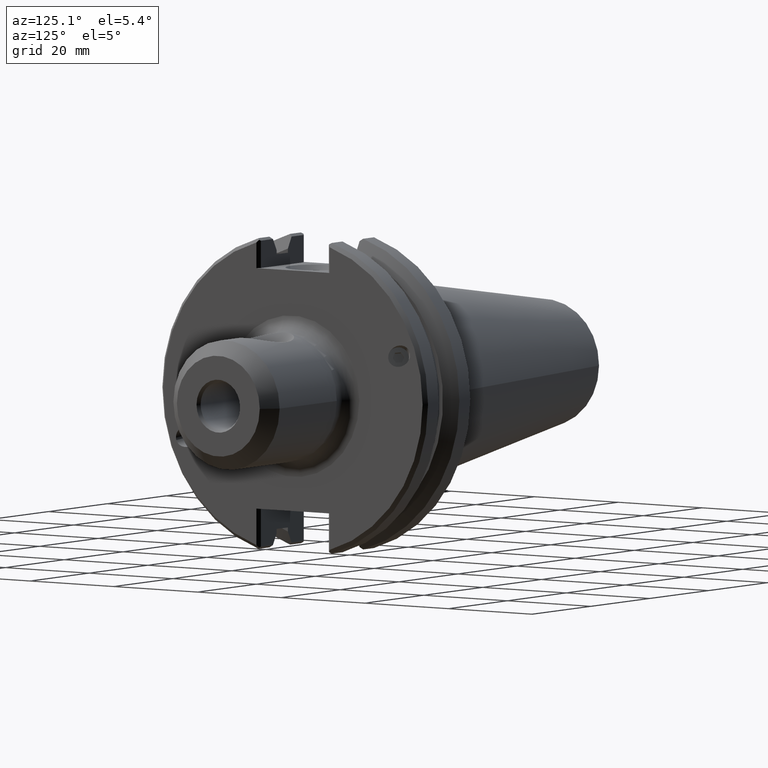
[diagram: clean part render]
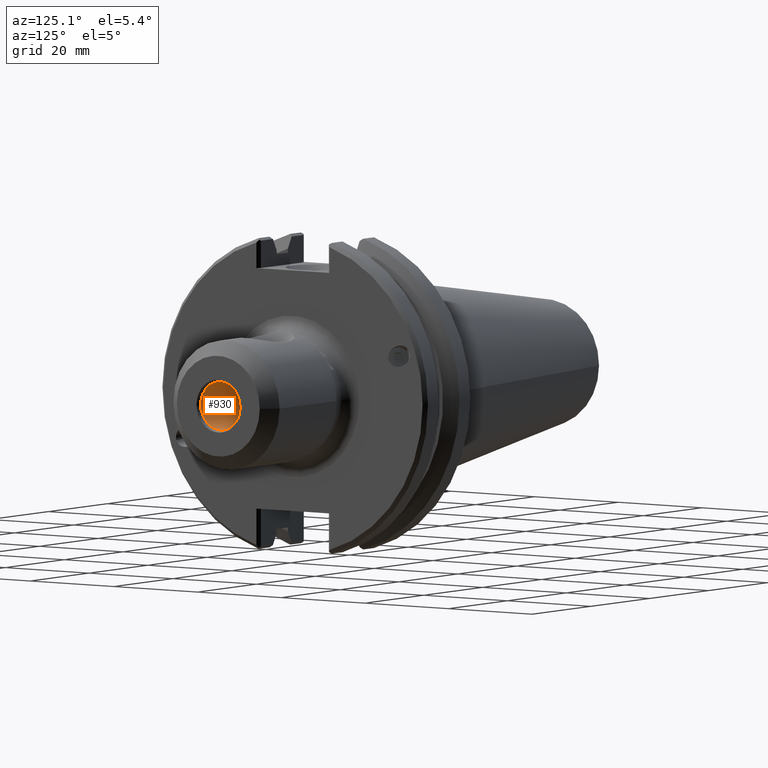
[diagram: same view with one face highlighted and labeled with its STEP entity id]
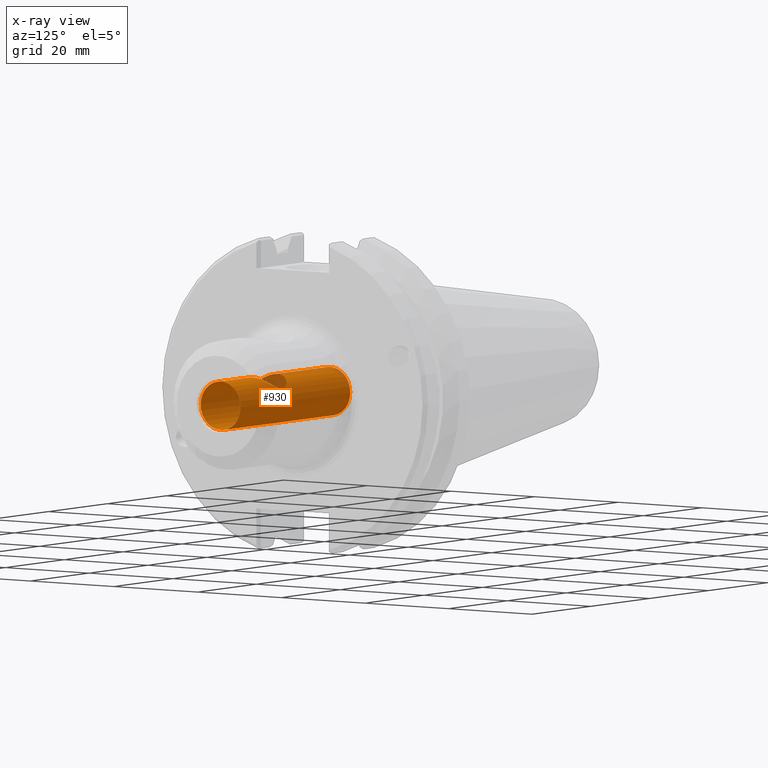
[diagram: x-ray of the same camera — body ghosted, the highlighted face saturated]
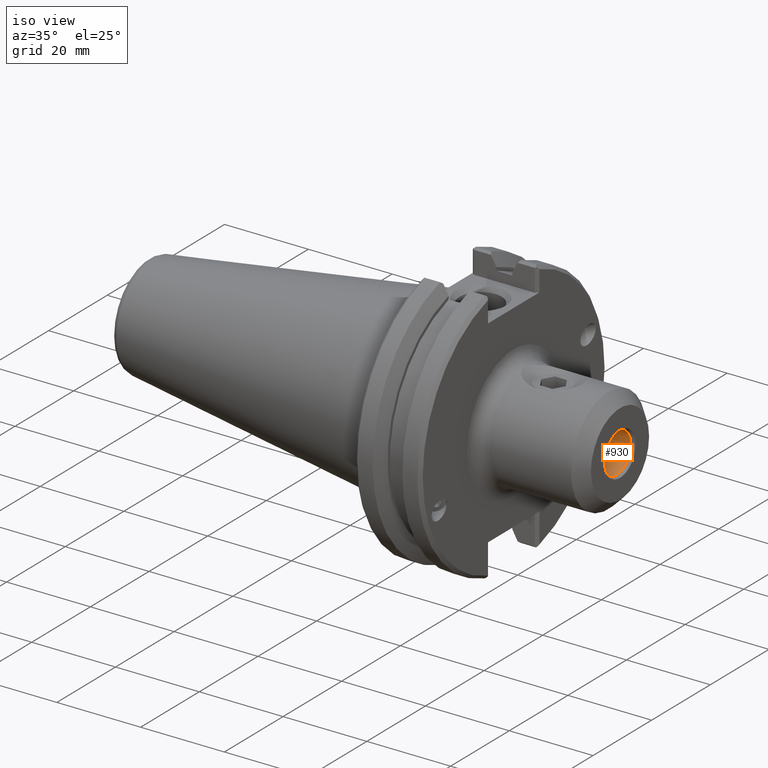
[diagram: same view with one face highlighted and labeled with its STEP entity id]
A machine part, auxiliary view. The second image highlights one B-rep face of the part: STEP entity #930.
The next image is the same camera in x-ray: the body ghosted, the highlighted face saturated — about 10% of this face is hidden behind the body in this view.
A second angle (iso view) of the same face is appended — the face is thin or edge-on in the first view.
In plain terms, the highlighted cylindrical surface (bore or boss wall) has radius 4.7625 mm, axis along (-1, 0, 0).
Its self-contained STEP definition (entity closure, byte-faithful):
#805=CARTESIAN_POINT('',(0.250005407046094,-0.1875,2.296213E-017));
#806=VERTEX_POINT('',#805);
#807=CARTESIAN_POINT('',(0.250005407046094,0.0,0.0));
#808=DIRECTION('',(-1.0,0.0,0.0));
#809=DIRECTION('',(0.0,1.0,0.0));
#810=AXIS2_PLACEMENT_3D('',#807,#808,#809);
#811=CIRCLE('',#810,0.1875);
#812=EDGE_CURVE('',#806,#806,#811,.T.);
#855=CARTESIAN_POINT('',(1.125,0.165,0.089057565652784));
#856=VERTEX_POINT('',#855);
#857=CARTESIAN_POINT('',(1.125,0.165,0.089057565652784));
#858=CARTESIAN_POINT('',(1.113208558924972,0.165,0.089057565652784));
#859=CARTESIAN_POINT('',(1.101971438075803,0.163754337616257,0.091435186365011));
#860=CARTESIAN_POINT('',(1.080455598613608,0.159253239120615,0.099067058688884));
#861=CARTESIAN_POINT('',(1.070165139173018,0.155988204003046,0.104282492298249));
#862=CARTESIAN_POINT('',(1.040671703163097,0.143424260442212,0.121611454867639));
#863=CARTESIAN_POINT('',(1.022864086922746,0.131209324714307,0.135222777750143));
#864=CARTESIAN_POINT('',(0.994665769949138,0.103011007740698,0.157637403092304));
#865=CARTESIAN_POINT('',(0.982078611153051,0.085333720666721,0.168340277174033));
#866=CARTESIAN_POINT('',(0.964720987524216,0.044933376628558,0.183306539052514));
#867=CARTESIAN_POINT('',(0.96,0.022163217022634,0.1875));
#868=CARTESIAN_POINT('',(0.96,-0.022163217022634,0.1875));
#869=CARTESIAN_POINT('',(0.964720987524216,-0.044933376628558,0.183306539052514));
#870=CARTESIAN_POINT('',(0.982078611153051,-0.085333720666721,0.168340277174033));
#871=CARTESIAN_POINT('',(0.994665769949138,-0.103011007740698,0.157637403092304));
#872=CARTESIAN_POINT('',(1.022864086922746,-0.131209324714307,0.135222777750143));
#873=CARTESIAN_POINT('',(1.040671703163097,-0.143424260442212,0.121611454867639));
#874=CARTESIAN_POINT('',(1.070165139173018,-0.155988204003046,0.104282492298249));
#875=CARTESIAN_POINT('',(1.080455598613608,-0.159253239120615,0.099067058688884));
#876=CARTESIAN_POINT('',(1.101971438075803,-0.163754337616257,0.091435186365011));
#877=CARTESIAN_POINT('',(1.113208558924972,-0.165,0.089057565652784));
#878=CARTESIAN_POINT('',(1.136791441075028,-0.165,0.089057565652784));
#879=CARTESIAN_POINT('',(1.148028561924197,-0.163754337616257,0.091435186365011));
#880=CARTESIAN_POINT('',(1.169544401386393,-0.159253239120615,0.099067058688885));
#881=CARTESIAN_POINT('',(1.179834860826983,-0.155988204003046,0.104282492298249));
#882=CARTESIAN_POINT('',(1.209328296836904,-0.143424260442212,0.121611454867639));
#883=CARTESIAN_POINT('',(1.227135913077254,-0.131209324714307,0.135222777750143));
#884=CARTESIAN_POINT('',(1.255334230050863,-0.103011007740698,0.157637403092304));
#885=CARTESIAN_POINT('',(1.26792138884695,-0.085333720666721,0.168340277174033));
#886=CARTESIAN_POINT('',(1.285279012475785,-0.044933376628558,0.183306539052514));
#887=CARTESIAN_POINT('',(1.29,-0.022163217022634,0.1875));
#888=CARTESIAN_POINT('',(1.29,0.022163217022634,0.1875));
#889=CARTESIAN_POINT('',(1.285279012475785,0.044933376628558,0.183306539052514));
#890=CARTESIAN_POINT('',(1.26792138884695,0.085333720666721,0.168340277174033));
#891=CARTESIAN_POINT('',(1.255334230050863,0.103011007740698,0.157637403092304));
#892=CARTESIAN_POINT('',(1.227135913077254,0.131209324714307,0.135222777750143));
#893=CARTESIAN_POINT('',(1.209328296836904,0.143424260442212,0.121611454867639));
#894=CARTESIAN_POINT('',(1.179834860826982,0.155988204003046,0.104282492298249));
#895=CARTESIAN_POINT('',(1.169544401386393,0.159253239120615,0.099067058688884));
#896=CARTESIAN_POINT('',(1.148028561924197,0.163754337616257,0.091435186365011));
#897=CARTESIAN_POINT('',(1.136791441075028,0.165,0.089057565652784));
#898=CARTESIAN_POINT('',(1.125,0.165,0.089057565652784));
#899=B_SPLINE_CURVE_WITH_KNOTS('',3,(#857,#858,#859,#860,#861,#862,#863,#864,#865,#866,#867,#868,#869,#870,#871,#872,#873,#874,#875,#876,#877,#878,#879,#880,#881,#882,#883,#884,#885,#886,#887,#888,#889,#890,#891,#892,#893,#894,#895,#896,#897,#898),.UNSPECIFIED.,.T.,.U.,(4,2,2,2,2,2,2,2,2,2,2,2,2,2,2,2,2,2,2,2,4),(0.0,0.089850780991713,0.179701561983426,0.359403123966853,0.528286837679324,0.697170551391796,0.866054265104267,1.034937978816739,1.214639540800165,1.304490321791878,1.394341102783591,1.484191883775304,1.574042664767017,1.753744226750444,1.922627940462915,2.091511654175386,2.260395367887858,2.429279081600329,2.608980643583756,2.698831424575469,2.788682205567182),.UNSPECIFIED.);
#900=EDGE_CURVE('',#856,#856,#899,.T.);
#908=CARTESIAN_POINT('',(0.984844555433773,0.0,0.0));
#909=DIRECTION('',(-1.0,0.0,0.0));
#910=DIRECTION('',(0.0,1.0,0.0));
#911=AXIS2_PLACEMENT_3D('',#908,#909,#910);
#912=CYLINDRICAL_SURFACE('',#911,0.1875);
#913=ORIENTED_EDGE('',*,*,#812,.T.);
#914=EDGE_LOOP('',(#913));
#915=FACE_OUTER_BOUND('',#914,.T.);
#916=ORIENTED_EDGE('',*,*,#900,.T.);
#917=EDGE_LOOP('',(#916));
#918=FACE_BOUND('',#917,.T.);
#919=CARTESIAN_POINT('',(1.719689110867545,0.1875,0.0));
#920=VERTEX_POINT('',#919);
#921=CARTESIAN_POINT('',(1.719689110867545,0.0,0.0));
#922=DIRECTION('',(-1.0,0.0,0.0));
#923=DIRECTION('',(0.0,1.0,0.0));
#924=AXIS2_PLACEMENT_3D('',#921,#922,#923);
#925=CIRCLE('',#924,0.1875);
#926=EDGE_CURVE('',#920,#920,#925,.T.);
#927=ORIENTED_EDGE('',*,*,#926,.F.);
#928=EDGE_LOOP('',(#927));
#929=FACE_BOUND('',#928,.T.);
#930=ADVANCED_FACE('',(#915,#918,#929),#912,.F.);